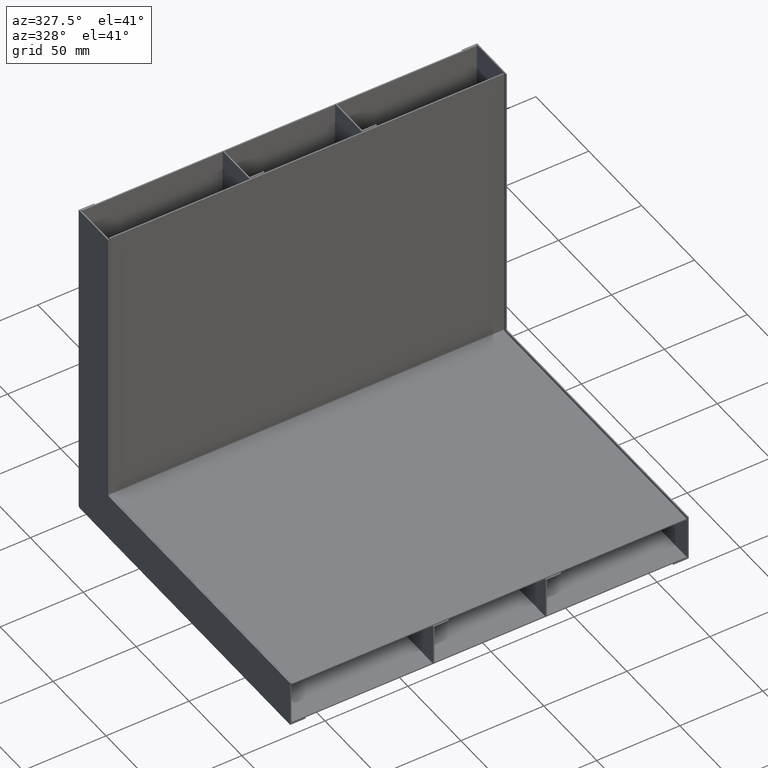
[diagram: clean part render]
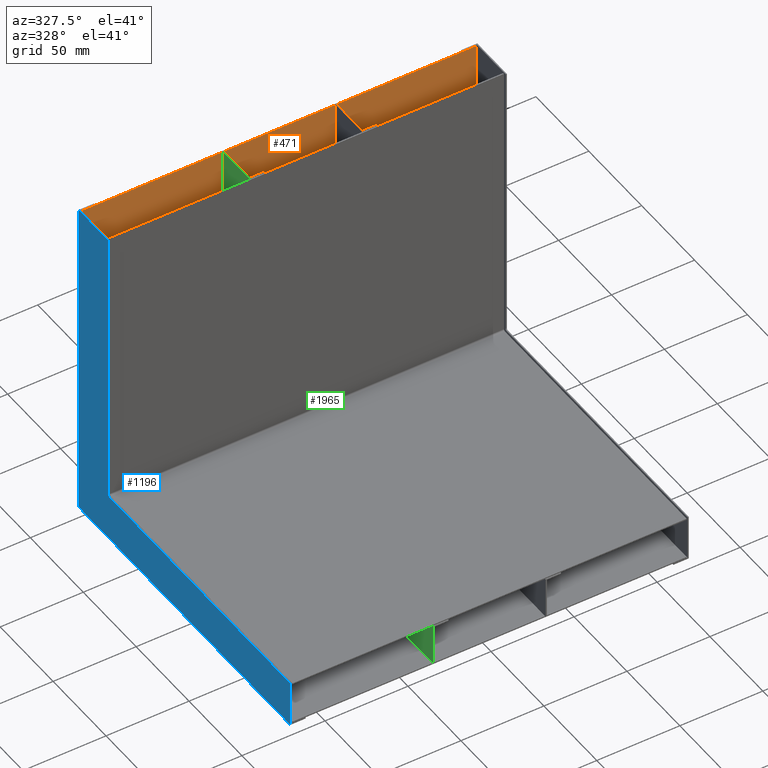
[diagram: same view with three faces highlighted in distinct colors, each labeled with its STEP entity id]
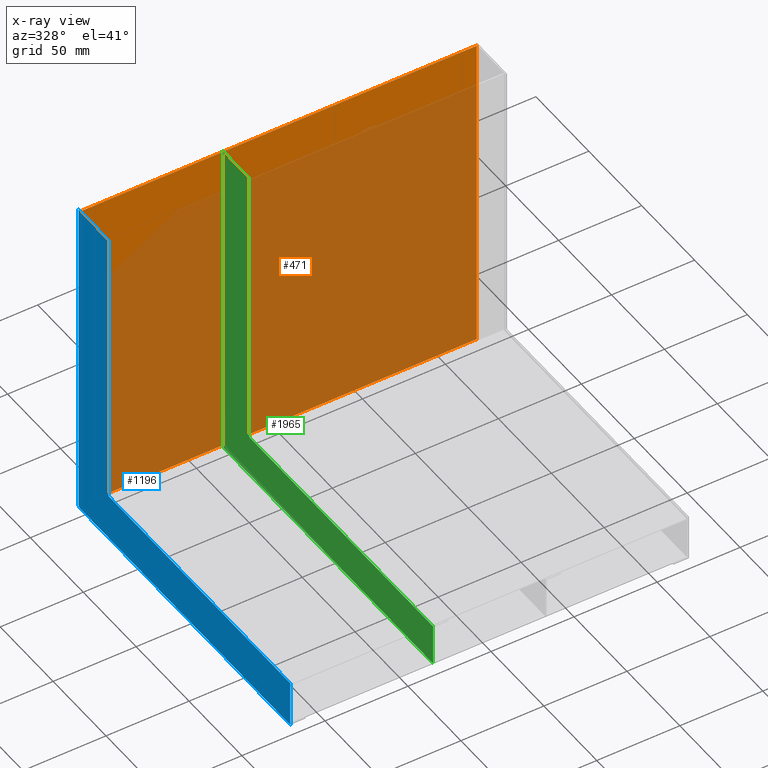
[diagram: x-ray of the same camera — body ghosted, the three highlighted faces saturated]
A machine part, auxiliary view with three faces highlighted in distinct colors.
The next image is the same camera in x-ray (body ghosted, the three faces saturated) — at least one of them is partly hidden behind the body in this view.
Their STEP definitions:

[orange] entity #471 — the highlighted planar face has unit normal (0, -1, 0).
#250=DIRECTION('',(0.E0,0.E0,1.E0));
#251=VECTOR('',#250,1.974700775253E2);
#252=CARTESIAN_POINT('',(-1.1875E2,-7.992247467149E-2,1.E0));
#253=LINE('',#252,#251);
#257=DIRECTION('',(1.E0,0.E0,0.E0));
#258=VECTOR('',#257,2.375E2);
#259=CARTESIAN_POINT('',(-1.1875E2,-7.992247467217E-2,1.984700775253E2));
#260=LINE('',#259,#258);
#264=DIRECTION('',(0.E0,0.E0,-1.E0));
#265=VECTOR('',#264,1.974700775253E2);
#266=CARTESIAN_POINT('',(1.1875E2,-7.992247467217E-2,1.984700775253E2));
#267=LINE('',#266,#265);
#271=DIRECTION('',(1.E0,0.E0,0.E0));
#272=VECTOR('',#271,2.375E2);
#273=CARTESIAN_POINT('',(-1.1875E2,-7.992247467149E-2,1.E0));
#274=LINE('',#273,#272);
#394=CARTESIAN_POINT('',(-1.1875E2,-7.992247467217E-2,1.984700775253E2));
#395=CARTESIAN_POINT('',(1.1875E2,-7.992247467217E-2,1.984700775253E2));
#396=VERTEX_POINT('',#394);
#397=VERTEX_POINT('',#395);
#398=CARTESIAN_POINT('',(1.1875E2,-7.992247467149E-2,1.E0));
#399=VERTEX_POINT('',#398);
#400=CARTESIAN_POINT('',(-1.1875E2,-7.992247467149E-2,1.E0));
#401=VERTEX_POINT('',#400);
#457=CARTESIAN_POINT('',(-1.1875E2,-7.992247467078E-2,-1.986299224747E2));
#458=DIRECTION('',(0.E0,-1.E0,0.E0));
#459=DIRECTION('',(1.E0,0.E0,0.E0));
#460=AXIS2_PLACEMENT_3D('',#457,#458,#459);
#461=PLANE('',#460);
#463=ORIENTED_EDGE('',*,*,#462,.F.);
#465=ORIENTED_EDGE('',*,*,#464,.T.);
#467=ORIENTED_EDGE('',*,*,#466,.T.);
#468=ORIENTED_EDGE('',*,*,#439,.T.);
#469=EDGE_LOOP('',(#463,#465,#467,#468));
#470=FACE_OUTER_BOUND('',#469,.F.);
#439=EDGE_CURVE('',#397,#399,#267,.T.);
#462=EDGE_CURVE('',#401,#399,#274,.T.);
#464=EDGE_CURVE('',#401,#396,#253,.T.);
#466=EDGE_CURVE('',#396,#397,#260,.T.);
#471=ADVANCED_FACE('',(#470),#461,.T.);

[blue] entity #1196 — the highlighted planar face has unit normal (-1, 0, 0).
#749=DIRECTION('',(0.E0,0.E0,1.E0));
#750=VECTOR('',#749,2.8E1);
#751=CARTESIAN_POINT('',(1.86E2,0.E0,-2.E2));
#752=LINE('',#751,#750);
#806=DIRECTION('',(-1.E0,0.E0,0.E0));
#807=VECTOR('',#806,2.8E1);
#808=CARTESIAN_POINT('',(1.4E1,0.E0,0.E0));
#809=LINE('',#808,#807);
#827=DIRECTION('',(0.E0,0.E0,1.E0));
#828=VECTOR('',#827,1.71E2);
#829=CARTESIAN_POINT('',(1.4E1,0.E0,-1.71E2));
#830=LINE('',#829,#828);
#849=CARTESIAN_POINT('',(1.5E1,0.E0,-1.71E2));
#850=DIRECTION('',(0.E0,1.E0,0.E0));
#851=DIRECTION('',(0.E0,0.E0,-1.E0));
#852=AXIS2_PLACEMENT_3D('',#849,#850,#851);
#871=DIRECTION('',(-1.E0,0.E0,0.E0));
#872=VECTOR('',#871,1.71E2);
#873=CARTESIAN_POINT('',(1.86E2,0.E0,-1.72E2));
#874=LINE('',#873,#872);
#885=DIRECTION('',(0.E0,0.E0,-1.E0));
#886=VECTOR('',#885,1.99E2);
#887=CARTESIAN_POINT('',(-1.4E1,0.E0,0.E0));
#888=LINE('',#887,#886);
#899=CARTESIAN_POINT('',(-1.3E1,0.E0,-1.99E2));
#900=DIRECTION('',(0.E0,-1.E0,0.E0));
#901=DIRECTION('',(-1.E0,0.E0,0.E0));
#902=AXIS2_PLACEMENT_3D('',#899,#900,#901);
#914=DIRECTION('',(1.E0,0.E0,0.E0));
#915=VECTOR('',#914,1.99E2);
#916=CARTESIAN_POINT('',(-1.3E1,0.E0,-2.E2));
#917=LINE('',#916,#915);
#986=CARTESIAN_POINT('',(-1.4E1,0.E0,0.E0));
#987=CARTESIAN_POINT('',(-1.4E1,0.E0,-1.99E2));
#988=VERTEX_POINT('',#986);
#989=VERTEX_POINT('',#987);
#990=CARTESIAN_POINT('',(1.4E1,0.E0,0.E0));
#991=VERTEX_POINT('',#990);
#992=CARTESIAN_POINT('',(1.4E1,0.E0,-1.71E2));
#993=VERTEX_POINT('',#992);
#994=CARTESIAN_POINT('',(1.5E1,0.E0,-1.72E2));
#995=VERTEX_POINT('',#994);
#996=CARTESIAN_POINT('',(1.86E2,0.E0,-1.72E2));
#997=VERTEX_POINT('',#996);
#998=CARTESIAN_POINT('',(1.86E2,0.E0,-2.E2));
#999=VERTEX_POINT('',#998);
#1000=CARTESIAN_POINT('',(-1.3E1,0.E0,-2.E2));
#1001=VERTEX_POINT('',#1000);
#1178=CARTESIAN_POINT('',(-1.3E1,0.E0,-1.99E2));
#1179=DIRECTION('',(0.E0,-1.E0,0.E0));
#1180=DIRECTION('',(0.E0,0.E0,-1.E0));
#1181=AXIS2_PLACEMENT_3D('',#1178,#1179,#1180);
#1182=PLANE('',#1181);
#1184=ORIENTED_EDGE('',*,*,#1183,.F.);
#1185=ORIENTED_EDGE('',*,*,#1127,.F.);
#1186=ORIENTED_EDGE('',*,*,#1145,.F.);
#1187=ORIENTED_EDGE('',*,*,#1159,.F.);
#1188=ORIENTED_EDGE('',*,*,#1172,.F.);
#1189=ORIENTED_EDGE('',*,*,#1070,.F.);
#1191=ORIENTED_EDGE('',*,*,#1190,.F.);
#1193=ORIENTED_EDGE('',*,*,#1192,.F.);
#1194=EDGE_LOOP('',(#1184,#1185,#1186,#1187,#1188,#1189,#1191,#1193));
#1195=FACE_OUTER_BOUND('',#1194,.F.);
#853=CIRCLE('',#852,1.E0);
#903=CIRCLE('',#902,1.E0);
#1070=EDGE_CURVE('',#999,#997,#752,.T.);
#1127=EDGE_CURVE('',#991,#988,#809,.T.);
#1145=EDGE_CURVE('',#993,#991,#830,.T.);
#1159=EDGE_CURVE('',#995,#993,#853,.T.);
#1172=EDGE_CURVE('',#997,#995,#874,.T.);
#1183=EDGE_CURVE('',#988,#989,#888,.T.);
#1190=EDGE_CURVE('',#1001,#999,#917,.T.);
#1192=EDGE_CURVE('',#989,#1001,#903,.T.);
#1196=ADVANCED_FACE('',(#1195),#1182,.T.);

[green] entity #1965 — the highlighted planar face has unit normal (-1, 0, 0).
#1518=DIRECTION('',(-1.E0,0.E0,0.E0));
#1519=VECTOR('',#1518,2.5E1);
#1520=CARTESIAN_POINT('',(1.25E1,0.E0,0.E0));
#1521=LINE('',#1520,#1519);
#1575=DIRECTION('',(0.E0,0.E0,1.E0));
#1576=VECTOR('',#1575,2.5E1);
#1577=CARTESIAN_POINT('',(1.865E2,0.E0,-1.99E2));
#1578=LINE('',#1577,#1576);
#1596=DIRECTION('',(1.E0,0.E0,0.E0));
#1597=VECTOR('',#1596,1.98E2);
#1598=CARTESIAN_POINT('',(-1.15E1,0.E0,-1.99E2));
#1599=LINE('',#1598,#1597);
#1618=CARTESIAN_POINT('',(-1.15E1,0.E0,-1.98E2));
#1619=DIRECTION('',(0.E0,-1.E0,0.E0));
#1620=DIRECTION('',(-1.E0,0.E0,0.E0));
#1621=AXIS2_PLACEMENT_3D('',#1618,#1619,#1620);
#1640=DIRECTION('',(0.E0,0.E0,-1.E0));
#1641=VECTOR('',#1640,1.98E2);
#1642=CARTESIAN_POINT('',(-1.25E1,0.E0,0.E0));
#1643=LINE('',#1642,#1641);
#1654=DIRECTION('',(0.E0,0.E0,1.E0));
#1655=VECTOR('',#1654,1.73E2);
#1656=CARTESIAN_POINT('',(1.25E1,0.E0,-1.73E2));
#1657=LINE('',#1656,#1655);
#1726=CARTESIAN_POINT('',(1.35E1,0.E0,-1.73E2));
#1727=DIRECTION('',(0.E0,1.E0,0.E0));
#1728=DIRECTION('',(0.E0,0.E0,-1.E0));
#1729=AXIS2_PLACEMENT_3D('',#1726,#1727,#1728);
#1741=DIRECTION('',(-1.E0,0.E0,0.E0));
#1742=VECTOR('',#1741,1.73E2);
#1743=CARTESIAN_POINT('',(1.865E2,0.E0,-1.74E2));
#1744=LINE('',#1743,#1742);
#1759=CARTESIAN_POINT('',(-1.25E1,0.E0,0.E0));
#1760=CARTESIAN_POINT('',(-1.25E1,0.E0,-1.98E2));
#1761=VERTEX_POINT('',#1759);
#1762=VERTEX_POINT('',#1760);
#1763=CARTESIAN_POINT('',(1.25E1,0.E0,0.E0));
#1764=VERTEX_POINT('',#1763);
#1765=CARTESIAN_POINT('',(1.25E1,0.E0,-1.73E2));
#1766=VERTEX_POINT('',#1765);
#1767=CARTESIAN_POINT('',(1.35E1,0.E0,-1.74E2));
#1768=VERTEX_POINT('',#1767);
#1769=CARTESIAN_POINT('',(1.865E2,0.E0,-1.74E2));
#1770=VERTEX_POINT('',#1769);
#1771=CARTESIAN_POINT('',(1.865E2,0.E0,-1.99E2));
#1772=VERTEX_POINT('',#1771);
#1773=CARTESIAN_POINT('',(-1.15E1,0.E0,-1.99E2));
#1774=VERTEX_POINT('',#1773);
#1947=CARTESIAN_POINT('',(-1.15E1,0.E0,-1.98E2));
#1948=DIRECTION('',(0.E0,-1.E0,0.E0));
#1949=DIRECTION('',(0.E0,0.E0,-1.E0));
#1950=AXIS2_PLACEMENT_3D('',#1947,#1948,#1949);
#1951=PLANE('',#1950);
#1952=ORIENTED_EDGE('',*,*,#1941,.F.);
#1953=ORIENTED_EDGE('',*,*,#1839,.F.);
#1955=ORIENTED_EDGE('',*,*,#1954,.F.);
#1957=ORIENTED_EDGE('',*,*,#1956,.F.);
#1959=ORIENTED_EDGE('',*,*,#1958,.F.);
#1960=ORIENTED_EDGE('',*,*,#1896,.F.);
#1961=ORIENTED_EDGE('',*,*,#1914,.F.);
#1962=ORIENTED_EDGE('',*,*,#1928,.F.);
#1963=EDGE_LOOP('',(#1952,#1953,#1955,#1957,#1959,#1960,#1961,#1962));
#1964=FACE_OUTER_BOUND('',#1963,.F.);
#1622=CIRCLE('',#1621,1.E0);
#1730=CIRCLE('',#1729,1.E0);
#1839=EDGE_CURVE('',#1764,#1761,#1521,.T.);
#1896=EDGE_CURVE('',#1772,#1770,#1578,.T.);
#1914=EDGE_CURVE('',#1774,#1772,#1599,.T.);
#1928=EDGE_CURVE('',#1762,#1774,#1622,.T.);
#1941=EDGE_CURVE('',#1761,#1762,#1643,.T.);
#1954=EDGE_CURVE('',#1766,#1764,#1657,.T.);
#1956=EDGE_CURVE('',#1768,#1766,#1730,.T.);
#1958=EDGE_CURVE('',#1770,#1768,#1744,.T.);
#1965=ADVANCED_FACE('',(#1964),#1951,.T.);